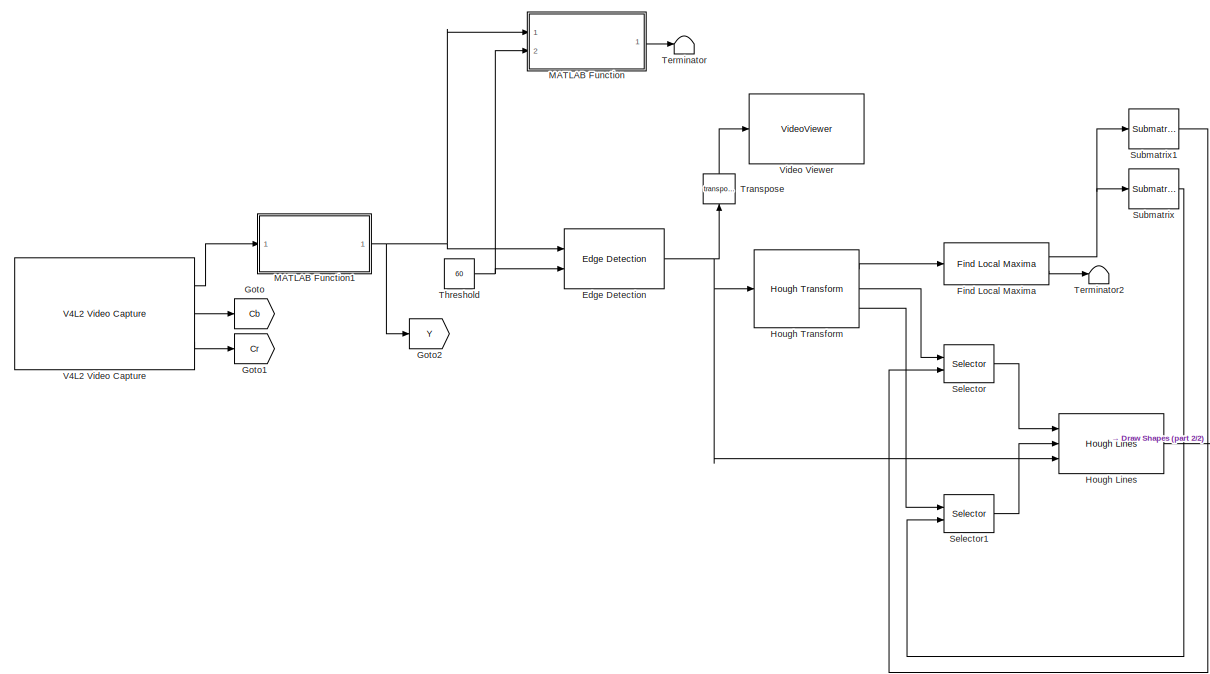
[diagram: root canvas - part 1/2, left side, full height]
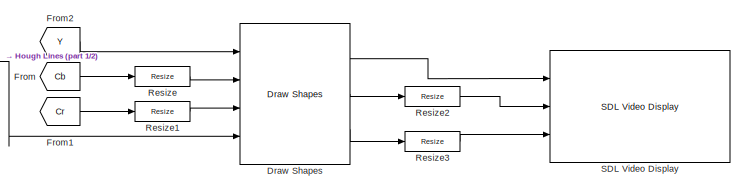
[diagram: root canvas - part 2/2, bottom right region]
MODEL slx_710af6859f56
KIND model
CONFIG AbsTol = auto
CONFIG EnableMultiTasking = on
CONFIG FixedStep = auto
CONFIG MaxStep = auto
CONFIG MinStep = auto
CONFIG RelTol = 1e-3
CONFIG SampleTimeConstraint = Unconstrained
CONFIG Solver = FixedStepAuto
CONFIG SolverName = FixedStepAuto
CONFIG StartTime = 0.0
CONFIG StopTime = inf
BLOCK [Reference] Draw Shapes  REF=visiontextngfix/Draw Shapes
  Ports = [4, 3]
  SourceBlock = visiontextngfix/Draw Shapes
  SourceProductBaseCode = VP
  SourceProductName = Computer Vision System Toolbox
  SourceType = Draw Shapes
BLOCK [Reference] Edge Detection  REF=visionanalysis/Edge Detection
  Ports = [2, 1]
  SourceBlock = visionanalysis/Edge Detection
  SourceProductBaseCode = VP
  SourceProductName = Computer Vision System Toolbox
  SourceType = Edge Detection
BLOCK [Reference] Find Local Maxima  REF=visionstatistics/Find Local Maxima
  Ports = [1, 2]
  SourceBlock = visionstatistics/Find Local Maxima
  SourceProductBaseCode = VP
  SourceProductName = Computer Vision System Toolbox
  SourceType = Find Local Maxima
BLOCK [From] From
  GotoTag = Cb
BLOCK [From] From1
  GotoTag = Cr
BLOCK [From] From2
  GotoTag = Y
BLOCK [Goto] Goto
  GotoTag = Cb
BLOCK [Goto] Goto1
  GotoTag = Cr
BLOCK [Goto] Goto2
  GotoTag = Y
BLOCK [Reference] Hough Lines  REF=visiontransforms/Hough Lines
  Ports = [3, 1]
  SourceBlock = visiontransforms/Hough Lines
  SourceProductBaseCode = VP
  SourceProductName = Computer Vision System Toolbox
  SourceType = Hough Lines
BLOCK [Reference] Hough Transform  REF=visiontransforms/Hough Transform
  Ports = [1, 3]
  SourceBlock = visiontransforms/Hough Transform
  SourceProductBaseCode = VP
  SourceProductName = Computer Vision System Toolbox
  SourceType = Hough Transform
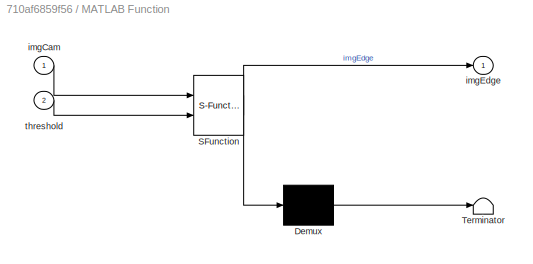
BLOCK [SubSystem] MATLAB Function
  ErrorFcn = Stateflow.Translate.translate
  PermitHierarchicalResolution = ExplicitOnly
  Ports = [2, 1]
  RequestExecContextInheritance = off
  SFBlockType = MATLAB Function
  TreatAsAtomicUnit = on
BLOCK [Demux] MATLAB Function/ Demux 
  Outputs = 1
  Ports = [1, 1]
BLOCK [S-Function] MATLAB Function/ SFunction 
  EnableBusSupport = on
  FunctionName = sf_sfun
  PortCounts = [2 2]
  Ports = [2, 2]
  SFcnIsStateOwnerBlock = off
  SFunctionDeploymentMode = off
  Tag = Stateflow S-Function lanedetection_ycbcr 2
BLOCK [Terminator] MATLAB Function/ Terminator 
BLOCK [Inport] MATLAB Function/imgCam
  IconDisplay = Port number
BLOCK [Outport] MATLAB Function/imgEdge
  IconDisplay = Port number
BLOCK [Inport] MATLAB Function/threshold
  IconDisplay = Port number
  Port = 2
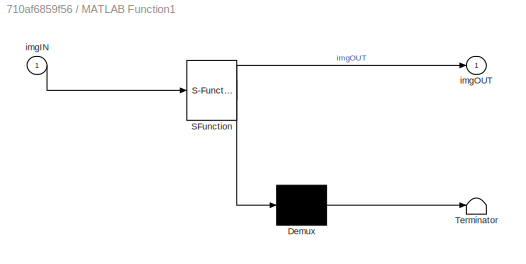
BLOCK [SubSystem] MATLAB Function1
  ErrorFcn = Stateflow.Translate.translate
  PermitHierarchicalResolution = ExplicitOnly
  Ports = [1, 1]
  RequestExecContextInheritance = off
  SFBlockType = MATLAB Function
  TreatAsAtomicUnit = on
BLOCK [Demux] MATLAB Function1/ Demux 
  Outputs = 1
  Ports = [1, 1]
BLOCK [S-Function] MATLAB Function1/ SFunction 
  EnableBusSupport = on
  FunctionName = sf_sfun
  PortCounts = [1 2]
  Ports = [1, 2]
  SFcnIsStateOwnerBlock = off
  SFunctionDeploymentMode = off
  Tag = Stateflow S-Function lanedetection_ycbcr 1
BLOCK [Terminator] MATLAB Function1/ Terminator 
BLOCK [Inport] MATLAB Function1/imgIN
  IconDisplay = Port number
BLOCK [Outport] MATLAB Function1/imgOUT
  IconDisplay = Port number
BLOCK [Reference] Resize  REF=visiongeotforms/Resize
  Ports = [1, 1]
  SourceBlock = visiongeotforms/Resize
  SourceProductBaseCode = VP
  SourceProductName = Computer Vision System Toolbox
  SourceType = Resize
BLOCK [Reference] Resize1  REF=visiongeotforms/Resize
  Ports = [1, 1]
  SourceBlock = visiongeotforms/Resize
  SourceProductBaseCode = VP
  SourceProductName = Computer Vision System Toolbox
  SourceType = Resize
BLOCK [Reference] Resize2  REF=visiongeotforms/Resize
  Ports = [1, 1]
  SourceBlock = visiongeotforms/Resize
  SourceProductBaseCode = VP
  SourceProductName = Computer Vision System Toolbox
  SourceType = Resize
BLOCK [Reference] Resize3  REF=visiongeotforms/Resize
  Ports = [1, 1]
  SourceBlock = visiongeotforms/Resize
  SourceProductBaseCode = VP
  SourceProductName = Computer Vision System Toolbox
  SourceType = Resize
BLOCK [Reference] SDL Video Display  REF=embdlinuxlib/SDL Video Display
  Ports = [3]
  SourceBlock = embdlinuxlib/SDL Video Display
  SourceProductBaseCode = RASPPI
  SourceProductName = Simulink Support Package for Raspberry Pi Hardware
  SourceType = SDL Video Display
BLOCK [Selector] Selector
  IndexOptions = Index vector (port)
  Indices = [1 3]
  InputPortWidth = 180
  OutputSizes = 1
  Ports = [2, 1]
BLOCK [Selector] Selector1
  IndexOptions = Index vector (port)
  Indices = [1 3]
  InputPortWidth = 671
  OutputSizes = 1
  Ports = [2, 1]
BLOCK [Reference] Submatrix  REF=dspmtrx3/Submatrix
  Ports = [1, 1]
  SourceBlock = dspmtrx3/Submatrix
  SourceProductBaseCode = DS
  SourceProductName = DSP System Toolbox
  SourceType = Submatrix
BLOCK [Reference] Submatrix1  REF=dspmtrx3/Submatrix
  Ports = [1, 1]
  SourceBlock = dspmtrx3/Submatrix
  SourceProductBaseCode = DS
  SourceProductName = DSP System Toolbox
  SourceType = Submatrix
BLOCK [Terminator] Terminator
BLOCK [Terminator] Terminator2
BLOCK [Constant] Threshold
  OutDataTypeStr = uint8
  Value = 60
BLOCK [Math] Transpose
  Operator = transpose
  Ports = [1, 1]
BLOCK [Reference] V4L2 Video Capture  REF=embdlinuxlib/V4L2 Video Capture
  Ports = [0, 3]
  SourceBlock = embdlinuxlib/V4L2 Video Capture
  SourceProductBaseCode = RASPPI
  SourceProductName = Simulink Support Package for Raspberry Pi Hardware
  SourceType = V4L2 Video Capture
BLOCK [VideoViewer] Video Viewer
  FigPos = [1054 448 842 305]
  Ports = [1]
  ScopeSpecificationString = vipscopes.VideoViewerScopeCfg('CurrentConfiguration', extmgr.ConfigurationSet(extmgr.Configuration('Core','General UI',true),extmgr.Configuration('Core','Source UI',true),extmgr.Configuration('Sources','WiredSimulink',true),extmgr.Configuration('Visuals','Video',true),extmgr.Configuration('Tools','Image Navigation Tools',true,'Magnification',2),extmgr.Configuration('Tools','Image Tool',true),extmg...<+94ch>
  colormapValue = gray(256)
LINE Draw Shapes:1 -> SDL Video Display:1
LINE Draw Shapes:2 -> Resize2:1
LINE Draw Shapes:3 -> Resize3:1
NET Edge Detection:1 -> Hough Lines:3, Hough Transform:1, Transpose:1
NET Find Local Maxima:1 -> Submatrix1:1, Submatrix:1
LINE Find Local Maxima:2 -> Terminator2:1
LINE From1:1 -> Resize1:1
LINE From2:1 -> Draw Shapes:1
LINE From:1 -> Resize:1
LINE Hough Lines:1 -> Draw Shapes:4
LINE Hough Transform:1 -> Find Local Maxima:1
LINE Hough Transform:2 -> Selector:1
LINE Hough Transform:3 -> Selector1:1
NET MATLAB Function1:1 -> Edge Detection:1, Goto2:1, MATLAB Function:1
LINE MATLAB Function:1 -> Terminator:1
LINE Resize1:1 -> Draw Shapes:3
LINE Resize2:1 -> SDL Video Display:2
LINE Resize3:1 -> SDL Video Display:3
LINE Resize:1 -> Draw Shapes:2
LINE Selector1:1 -> Hough Lines:2
LINE Selector:1 -> Hough Lines:1
LINE Submatrix1:1 -> Selector:2
LINE Submatrix:1 -> Selector1:2
NET Threshold:1 -> Edge Detection:2, MATLAB Function:2
LINE Transpose:1 -> Video Viewer:1
LINE V4L2 Video Capture:1 -> MATLAB Function1:1
LINE V4L2 Video Capture:2 -> Goto:1
LINE V4L2 Video Capture:3 -> Goto1:1
note: NET lines group one-source signal fan-out (src -> all destinations, sorted); 1:1 wires keep LINE
CHART MATLAB Function1 states=1 transitions=1
  STATE_LABEL 'eML_blk_kernel()'
  STATE_LABEL "SCRIPT:\nfunction imgOUT   = imgROI(imgIN)\n\n    % imgIN Array von 160x120\n    % rectangle('Position',[x,y,w,h])\n    \n    imgOUT = imgIN(0:319,120:219);\n\nend"
CHART MATLAB Function states=1 transitions=1
  STATE_LABEL 'eML_blk_kernel()'
  STATE_LABEL "SCRIPT:\nfunction imgEdge   = lanedetection(imgCam, threshold)\n\n    % create laplacian filter\n    k = [1 2 1; 0 0 0; -1 -2 -1];\n    % run sobel\n    V = conv2(double(imgCam), k', 'same');\n    % filter edges\n    imgEdge = V > threshold;\n\nend"
